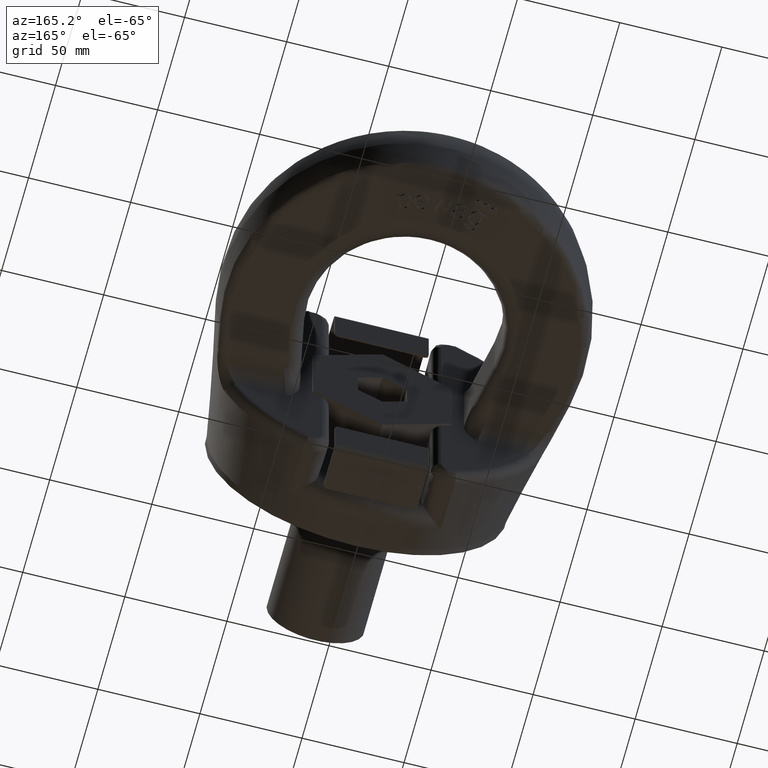
[diagram: clean part render]
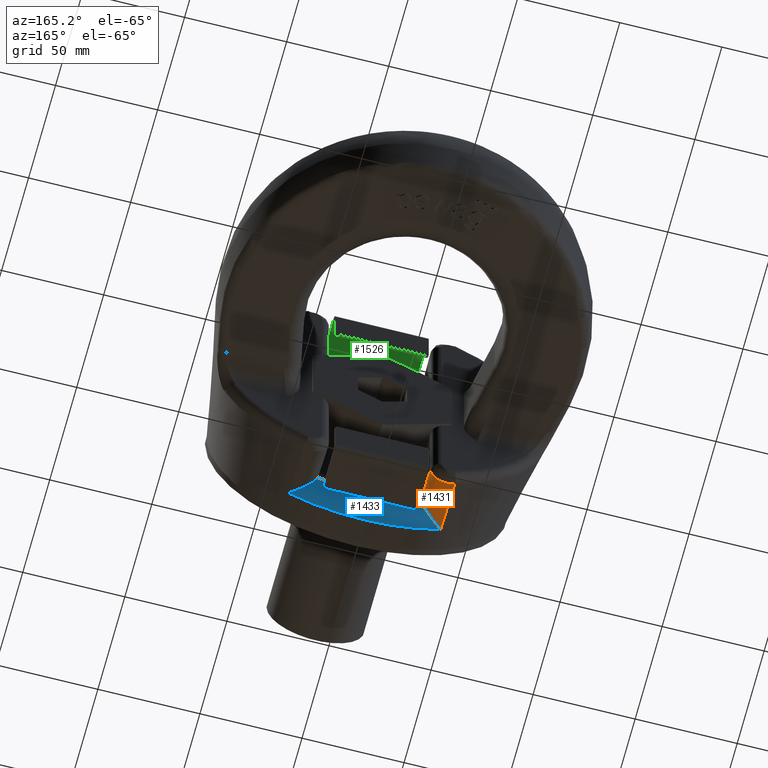
[diagram: same view with three faces highlighted in distinct colors, each labeled with its STEP entity id]
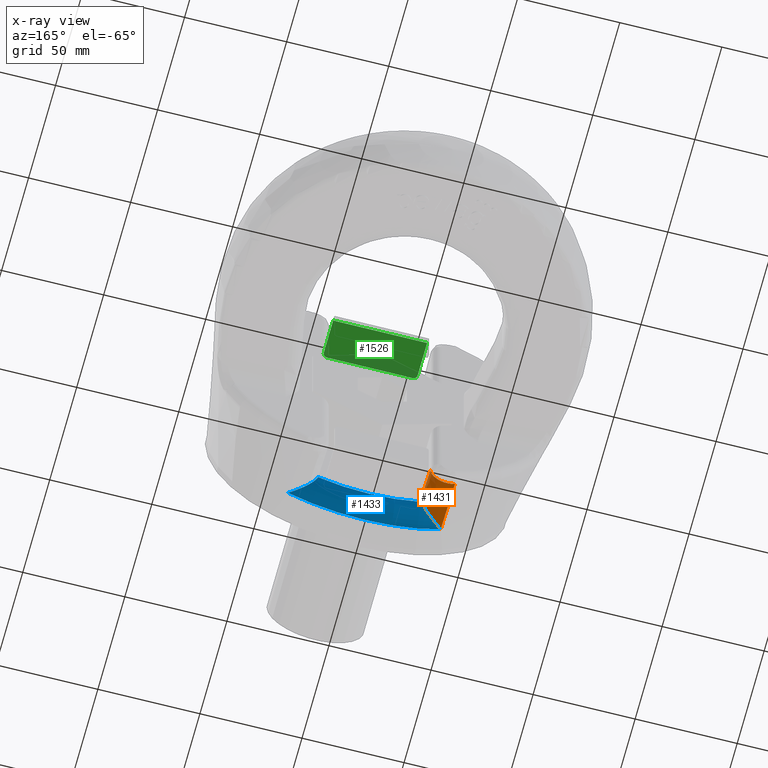
[diagram: x-ray of the same camera — body ghosted, the three highlighted faces saturated]
A machine part, auxiliary view with three faces highlighted in distinct colors.
The next image is the same camera in x-ray (body ghosted, the three faces saturated) — at least one of them is partly hidden behind the body in this view.
Their STEP definitions:

[orange] entity #1431 — the highlighted face is a freeform B-spline surface patch.
#1034=(
BOUNDED_SURFACE()
B_SPLINE_SURFACE(3,2,((#8424,#8425,#8426),(#8427,#8428,#8429),(#8430,#8431,
#8432),(#8433,#8434,#8435)),.UNSPECIFIED.,.F.,.F.,.F.)
B_SPLINE_SURFACE_WITH_KNOTS((4,4),(3,3),(0.,1.),(0.,1.),.UNSPECIFIED.)
GEOMETRIC_REPRESENTATION_ITEM()
RATIONAL_B_SPLINE_SURFACE(((1.,0.527329025017665,1.),(1.,0.522021725853626,
1.),(1.,0.516241448517569,1.),(1.,0.509827087080664,1.)))
REPRESENTATION_ITEM('')
SURFACE()
);
#1199=FACE_OUTER_BOUND('',#1962,.T.);
#1431=ADVANCED_FACE('',(#1199),#1034,.T.);
#1962=EDGE_LOOP('',(#3363,#3364,#3365,#3366,#3367));
#3363=ORIENTED_EDGE('',*,*,#4376,.F.);
#3364=ORIENTED_EDGE('',*,*,#4640,.T.);
#3365=ORIENTED_EDGE('',*,*,#4633,.F.);
#3366=ORIENTED_EDGE('',*,*,#4629,.F.);
#3367=ORIENTED_EDGE('',*,*,#4641,.F.);
#3986=VERTEX_POINT('',#6774);
#3987=VERTEX_POINT('',#6782);
#4145=VERTEX_POINT('',#8378);
#4146=VERTEX_POINT('',#8383);
#4149=VERTEX_POINT('',#8397);
#4376=EDGE_CURVE('',#3986,#3987,#4889,.T.);
#4629=EDGE_CURVE('',#4145,#4146,#5018,.T.);
#4633=EDGE_CURVE('',#4146,#4149,#5019,.T.);
#4640=EDGE_CURVE('',#3986,#4149,#5020,.T.);
#4641=EDGE_CURVE('',#3987,#4145,#5021,.T.);
#4889=B_SPLINE_CURVE_WITH_KNOTS('',3,(#6775,#6776,#6777,#6778,#6779,#6780,
#6781),.UNSPECIFIED.,.F.,.F.,(4,3,4),(0.,0.272292325892562,1.),
 .UNSPECIFIED.);
#5018=B_SPLINE_CURVE_WITH_KNOTS('',3,(#8379,#8380,#8381,#8382),
 .UNSPECIFIED.,.F.,.F.,(4,4),(0.,1.),.UNSPECIFIED.);
#5019=B_SPLINE_CURVE_WITH_KNOTS('',3,(#8390,#8391,#8392,#8393,#8394,#8395,
#8396),.UNSPECIFIED.,.F.,.F.,(4,3,4),(0.,0.635280833854642,1.),
 .UNSPECIFIED.);
#5020=B_SPLINE_CURVE_WITH_KNOTS('',3,(#8410,#8411,#8412,#8413,#8414,#8415),
 .UNSPECIFIED.,.F.,.F.,(4,2,4),(0.,0.5,1.),.UNSPECIFIED.);
#5021=B_SPLINE_CURVE_WITH_KNOTS('',3,(#8416,#8417,#8418,#8419,#8420,#8421,
#8422,#8423),.UNSPECIFIED.,.F.,.F.,(4,2,2,4),(0.,0.5,0.75,1.),
 .UNSPECIFIED.);
#6774=CARTESIAN_POINT('',(-37.1310144158038,42.9778944153068,-73.0886031205242));
#6775=CARTESIAN_POINT('',(-37.1310144158038,42.9778944153068,-73.0886031205242));
#6776=CARTESIAN_POINT('',(-37.1562588620238,40.4781663420141,-72.5161358794599));
#6777=CARTESIAN_POINT('',(-37.1820113280751,37.9788532934449,-71.9418750789134));
#6778=CARTESIAN_POINT('',(-37.2083033527759,35.4799943878611,-71.3656725416174));
#6779=CARTESIAN_POINT('',(-37.2785692704162,28.8017481876345,-69.8257607055953));
#6780=CARTESIAN_POINT('',(-37.3526783553789,22.1266991999599,-68.272050908014));
#6781=CARTESIAN_POINT('',(-37.4313287231455,15.4557888306137,-66.7010617175532));
#6782=CARTESIAN_POINT('',(-37.4313287231455,15.4557888306137,-66.7010617175532));
#8378=CARTESIAN_POINT('',(-25.2255851448152,25.5000000000001,-63.4157004694215));
#8379=CARTESIAN_POINT('',(-25.2255851448152,25.5000000000001,-63.4157004694215));
#8380=CARTESIAN_POINT('',(-25.0760616120674,25.5000000000001,-62.7674946038835));
#8381=CARTESIAN_POINT('',(-24.9999999999998,25.5000000000001,-62.098035380757));
#8382=CARTESIAN_POINT('',(-24.9999999999998,25.5000000000001,-61.4328075017838));
#8383=CARTESIAN_POINT('',(-24.9999999999998,25.5000000000001,-61.4328075017838));
#8390=CARTESIAN_POINT('',(-24.9999999999998,25.5000000000001,-61.4328075017838));
#8391=CARTESIAN_POINT('',(-24.9999999999998,29.3738428698279,-62.312919050924));
#8392=CARTESIAN_POINT('',(-24.9999999999998,33.2486180436095,-63.1889347995472));
#8393=CARTESIAN_POINT('',(-24.9999999999998,37.1242055572475,-64.0613316949906));
#8394=CARTESIAN_POINT('',(-24.9999999999998,39.3492078113182,-64.5621809344867));
#8395=CARTESIAN_POINT('',(-24.9999999999998,41.5744791615485,-65.0618360268838));
#8396=CARTESIAN_POINT('',(-24.9999999999998,43.8,-65.5603758838078));
#8397=CARTESIAN_POINT('',(-24.9999999999998,43.8,-65.5603758838078));
#8410=CARTESIAN_POINT('',(-37.1310144158038,42.9778944153069,-73.0886031205242));
#8411=CARTESIAN_POINT('',(-34.5553399360751,42.8384861902377,-74.3659054845126));
#8412=CARTESIAN_POINT('',(-31.3827392596602,42.8560112695677,-74.2052582230254));
#8413=CARTESIAN_POINT('',(-26.524496337174,43.1869546267043,-71.1732274343987));
#8414=CARTESIAN_POINT('',(-24.9999999999994,43.4874068193175,-68.421280733975));
#8415=CARTESIAN_POINT('',(-24.9999999999998,43.8000000000001,-65.5603758838078));
#8416=CARTESIAN_POINT('',(-37.4313287231455,15.4557888306138,-66.7010617175532));
#8417=CARTESIAN_POINT('',(-35.545636649306,17.420953752428,-68.2090662808302));
#8418=CARTESIAN_POINT('',(-33.2592014307468,19.5457229970233,-69.0653710285389));
#8419=CARTESIAN_POINT('',(-29.6815419997056,22.5675181637545,-68.5962993708092));
#8420=CARTESIAN_POINT('',(-28.4803541395492,23.5312860250488,-68.129127751081));
#8421=CARTESIAN_POINT('',(-26.4039340749948,25.0235848289676,-66.3257358981011));
#8422=CARTESIAN_POINT('',(-25.5808194437844,25.5000000000001,-64.9556918808101));
#8423=CARTESIAN_POINT('',(-25.2255851448152,25.5000000000001,-63.4157004694215));
#8424=CARTESIAN_POINT('',(-24.9999999999998,44.8886190322565,-65.8041447789042));
#8425=CARTESIAN_POINT('',(-24.9999999999998,41.932211868449,-79.0118443610343));
#8426=CARTESIAN_POINT('',(-37.1283248694817,43.2444078628701,-73.1496306919033));
#8427=CARTESIAN_POINT('',(-24.9999999999998,35.5655849076684,-63.7172798634567));
#8428=CARTESIAN_POINT('',(-24.9999999999161,32.4542646107855,-77.0855863967596));
#8429=CARTESIAN_POINT('',(-37.2223413896906,33.9213699290736,-71.0150452581405));
#8430=CARTESIAN_POINT('',(-24.9999999999998,26.2467297356711,-61.6112481216354));
#8431=CARTESIAN_POINT('',(-24.9999999999834,23.0467354317984,-75.1752588129032));
#8432=CARTESIAN_POINT('',(-37.3233828841747,24.6025129294772,-68.8555220045644));
#8433=CARTESIAN_POINT('',(-24.9999999999998,16.9343633957113,-59.4794884455621));
#8434=CARTESIAN_POINT('',(-24.9999999999998,13.7714901553992,-73.2961651692581));
#8435=CARTESIAN_POINT('',(-37.4332825334844,15.290152226325,-66.6620507763431));

[blue] entity #1433 — the highlighted toroidal blend (fillet) surface has major radius 68.2487 mm and minor (blend) radius 8.4 mm.
#1019=TOROIDAL_SURFACE('',#5260,68.2486718693171,8.4);
#1201=FACE_OUTER_BOUND('',#1964,.T.);
#1433=ADVANCED_FACE('',(#1201),#1019,.T.);
#1678=CIRCLE('',#5136,76.486181786183);
#1714=CIRCLE('',#5251,68.2486718693171);
#1964=EDGE_LOOP('',(#3373,#3374,#3375,#3376));
#3373=ORIENTED_EDGE('',*,*,#4641,.T.);
#3374=ORIENTED_EDGE('',*,*,#4628,.F.);
#3375=ORIENTED_EDGE('',*,*,#4643,.T.);
#3376=ORIENTED_EDGE('',*,*,#4377,.F.);
#3987=VERTEX_POINT('',#6782);
#3988=VERTEX_POINT('',#6784);
#4144=VERTEX_POINT('',#8376);
#4145=VERTEX_POINT('',#8378);
#4377=EDGE_CURVE('',#3987,#3988,#1678,.T.);
#4628=EDGE_CURVE('',#4144,#4145,#1714,.T.);
#4641=EDGE_CURVE('',#3987,#4145,#5021,.T.);
#4643=EDGE_CURVE('',#4144,#3988,#5023,.T.);
#5021=B_SPLINE_CURVE_WITH_KNOTS('',3,(#8416,#8417,#8418,#8419,#8420,#8421,
#8422,#8423),.UNSPECIFIED.,.F.,.F.,(4,2,2,4),(0.,0.5,0.75,1.),
 .UNSPECIFIED.);
#5023=B_SPLINE_CURVE_WITH_KNOTS('',3,(#8442,#8443,#8444,#8445,#8446,#8447,
#8448,#8449),.UNSPECIFIED.,.F.,.F.,(4,2,2,4),(0.,0.25,0.5,1.),
 .UNSPECIFIED.);
#5136=AXIS2_PLACEMENT_3D('',#6783,#5485,#5486);
#5251=AXIS2_PLACEMENT_3D('',#8377,#5850,#5851);
#5260=AXIS2_PLACEMENT_3D('',#8462,#5875,#5876);
#5485=DIRECTION('',(-1.38777878078145E-16,-1.,-3.25144179520044E-31));
#5486=DIRECTION('',(-1.,1.36081323616825E-16,-2.34291072916505E-15));
#5850=DIRECTION('',(1.38777878078145E-16,1.,3.25144179520044E-31));
#5851=DIRECTION('',(1.,-1.52506130460543E-16,2.34291072916505E-15));
#5875=DIRECTION('',(1.38777878078145E-16,1.,3.25144179520044E-31));
#5876=DIRECTION('',(1.,-1.3579284026743E-16,2.34291072916505E-15));
#6782=CARTESIAN_POINT('',(-37.4313287231455,15.4557888306137,-66.7010617175532));
#6783=CARTESIAN_POINT('',(1.1640282149259E-13,15.4557888306138,2.72721419380072E-28));
#6784=CARTESIAN_POINT('',(37.4313287231458,15.4557888306137,-66.7010617175532));
#8376=CARTESIAN_POINT('',(25.2255851448155,25.5000000000001,-63.4157004694215));
#8377=CARTESIAN_POINT('',(1.54275797210914E-13,25.5000000000001,3.61454420535941E-28));
#8378=CARTESIAN_POINT('',(-25.2255851448152,25.5000000000001,-63.4157004694215));
#8416=CARTESIAN_POINT('',(-37.4313287231455,15.4557888306138,-66.7010617175532));
#8417=CARTESIAN_POINT('',(-35.545636649306,17.420953752428,-68.2090662808302));
#8418=CARTESIAN_POINT('',(-33.2592014307468,19.5457229970233,-69.0653710285389));
#8419=CARTESIAN_POINT('',(-29.6815419997056,22.5675181637545,-68.5962993708092));
#8420=CARTESIAN_POINT('',(-28.4803541395492,23.5312860250488,-68.129127751081));
#8421=CARTESIAN_POINT('',(-26.4039340749948,25.0235848289676,-66.3257358981011));
#8422=CARTESIAN_POINT('',(-25.5808194437844,25.5000000000001,-64.9556918808101));
#8423=CARTESIAN_POINT('',(-25.2255851448152,25.5000000000001,-63.4157004694215));
#8442=CARTESIAN_POINT('',(25.2255851448155,25.5000000000001,-63.4157004694215));
#8443=CARTESIAN_POINT('',(25.5808194437847,25.5000000000001,-64.9556918808101));
#8444=CARTESIAN_POINT('',(26.4039340749951,25.0235848289676,-66.3257358981011));
#8445=CARTESIAN_POINT('',(28.4803541395495,23.5312860250488,-68.1291277510809));
#8446=CARTESIAN_POINT('',(29.6815419997059,22.5675181637544,-68.5962993708092));
#8447=CARTESIAN_POINT('',(33.2592014307472,19.5457229970233,-69.0653710285389));
#8448=CARTESIAN_POINT('',(35.5456366518206,17.4209537554011,-68.2090662800996));
#8449=CARTESIAN_POINT('',(37.4313287231458,15.4557888306138,-66.7010617175532));
#8462=CARTESIAN_POINT('',(1.53110063035057E-13,17.1000000000001,3.58723209427972E-28));

[green] entity #1526 — the highlighted planar face has unit normal (0, 0, -1).
#1287=FACE_OUTER_BOUND('',#2064,.T.);
#1526=ADVANCED_FACE('',(#1287),#1655,.T.);
#1655=PLANE('',#5344);
#1738=CIRCLE('',#5342,2.);
#1739=CIRCLE('',#5343,2.);
#2064=EDGE_LOOP('',(#3768,#3769,#3770,#3771,#3772,#3773));
#2320=LINE('',#9559,#2656);
#2324=LINE('',#9571,#2660);
#2328=LINE('',#9580,#2664);
#2339=LINE('',#9610,#2675);
#2656=VECTOR('',#6100,1.);
#2660=VECTOR('',#6110,1.);
#2664=VECTOR('',#6116,1.);
#2675=VECTOR('',#6141,1.);
#3768=ORIENTED_EDGE('',*,*,#4784,.T.);
#3769=ORIENTED_EDGE('',*,*,#4810,.T.);
#3770=ORIENTED_EDGE('',*,*,#4790,.T.);
#3771=ORIENTED_EDGE('',*,*,#4811,.T.);
#3772=ORIENTED_EDGE('',*,*,#4794,.F.);
#3773=ORIENTED_EDGE('',*,*,#4809,.F.);
#4220=VERTEX_POINT('',#9558);
#4221=VERTEX_POINT('',#9560);
#4226=VERTEX_POINT('',#9572);
#4227=VERTEX_POINT('',#9573);
#4230=VERTEX_POINT('',#9581);
#4231=VERTEX_POINT('',#9582);
#4784=EDGE_CURVE('',#4221,#4220,#2320,.T.);
#4790=EDGE_CURVE('',#4226,#4227,#2324,.T.);
#4794=EDGE_CURVE('',#4230,#4231,#2328,.T.);
#4809=EDGE_CURVE('',#4221,#4230,#2339,.T.);
#4810=EDGE_CURVE('',#4220,#4226,#1738,.T.);
#4811=EDGE_CURVE('',#4227,#4231,#1739,.T.);
#5342=AXIS2_PLACEMENT_3D('',#9612,#6144,#6145);
#5343=AXIS2_PLACEMENT_3D('',#9613,#6146,#6147);
#5344=AXIS2_PLACEMENT_3D('',#9614,#6148,#6149);
#6100=DIRECTION('',(0.,-1.,0.));
#6110=DIRECTION('',(-1.,0.,0.));
#6116=DIRECTION('',(0.,-1.,0.));
#6141=DIRECTION('',(-1.,0.,0.));
#6144=DIRECTION('',(0.,0.,-1.));
#6145=DIRECTION('',(-1.,0.,0.));
#6146=DIRECTION('',(0.,0.,-1.));
#6147=DIRECTION('',(-1.,0.,0.));
#6148=DIRECTION('',(0.,0.,-1.));
#6149=DIRECTION('',(-1.,0.,0.));
#9558=CARTESIAN_POINT('',(23.,27.5000000000001,73.));
#9559=CARTESIAN_POINT('',(23.,45.0000000000001,73.));
#9560=CARTESIAN_POINT('',(23.,45.0000000000001,73.));
#9571=CARTESIAN_POINT('',(23.,25.5000000000001,73.));
#9572=CARTESIAN_POINT('',(21.,25.5000000000001,73.));
#9573=CARTESIAN_POINT('',(-21.,25.5000000000001,73.));
#9580=CARTESIAN_POINT('',(-23.,45.0000000000001,73.));
#9581=CARTESIAN_POINT('',(-23.,45.0000000000001,73.));
#9582=CARTESIAN_POINT('',(-23.,27.5000000000001,73.));
#9610=CARTESIAN_POINT('',(23.,45.0000000000001,73.));
#9612=CARTESIAN_POINT('',(21.,27.5000000000001,73.));
#9613=CARTESIAN_POINT('',(-21.,27.5000000000001,73.));
#9614=CARTESIAN_POINT('',(23.,45.0000000000001,73.));